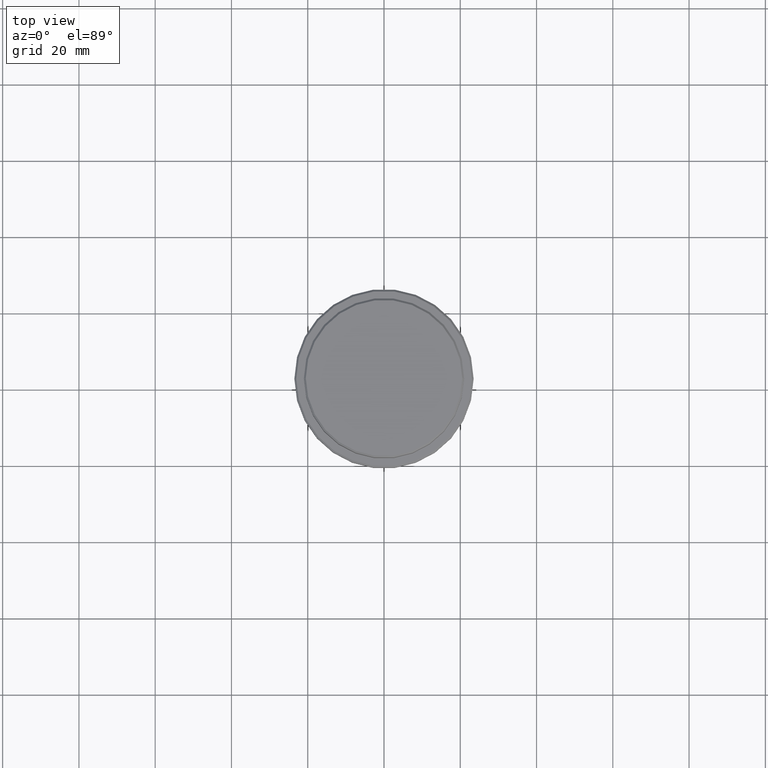
[diagram: clean part render]
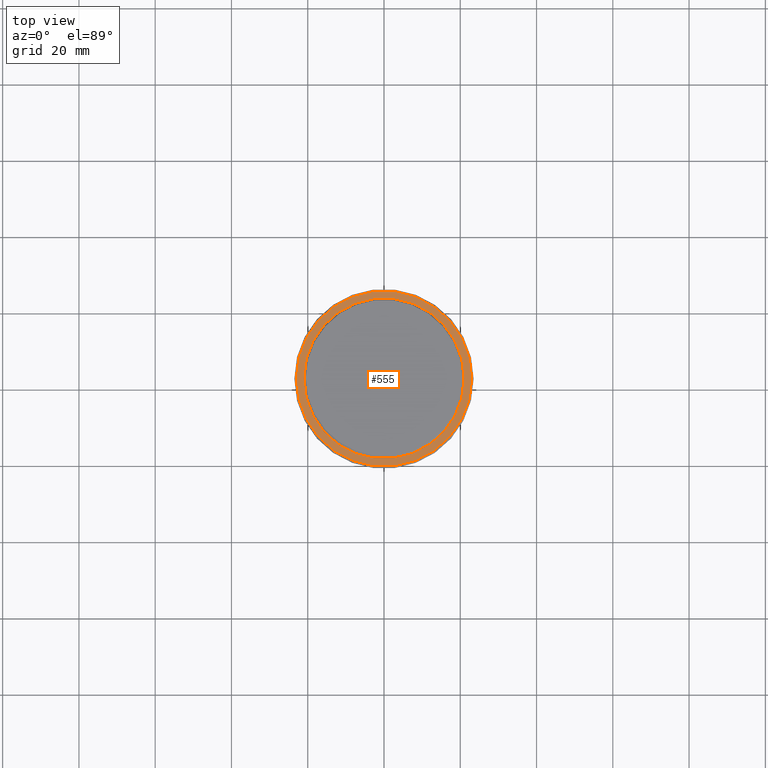
[diagram: same view with one face highlighted and labeled with its STEP entity id]
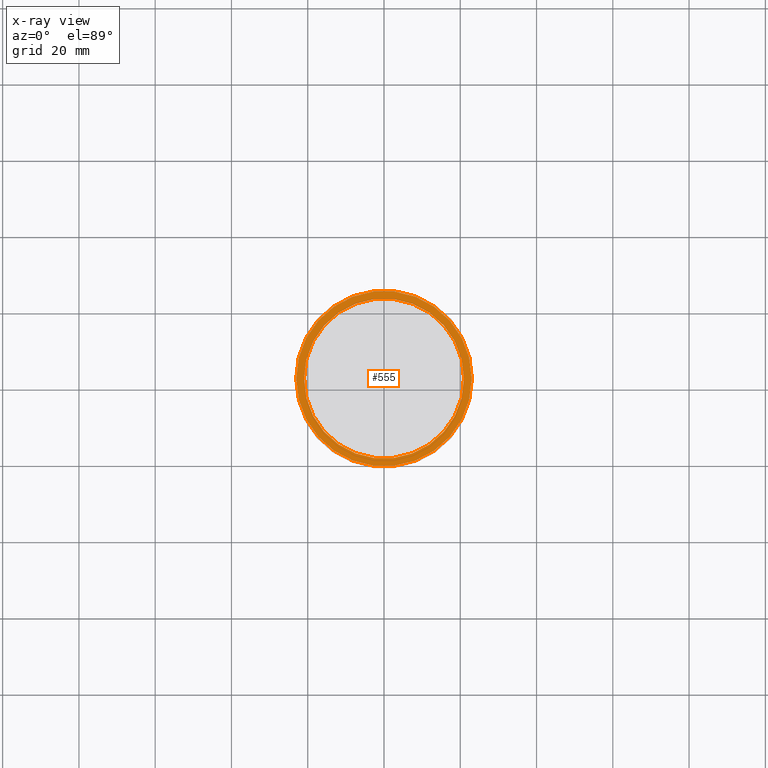
[diagram: x-ray of the same camera — body ghosted, the highlighted face saturated]
A machine part, top view. The second image highlights one B-rep face of the part: STEP entity #555.
The next image is the same camera in x-ray: the body ghosted, the highlighted face saturated — about 0% of this face is hidden behind the body in this view.
In plain terms, the highlighted planar face has unit normal (0, -0, 1).
Its self-contained STEP definition (entity closure, byte-faithful):
#44 = CARTESIAN_POINT ( 'NONE',  ( 20.99999999999999289, 0.000000000000000000, -9.000000000000000000 ) ) ;
#53 = CIRCLE ( 'NONE', #861, 23.00000000000005329 ) ;
#88 = EDGE_LOOP ( 'NONE', ( #1261, #460 ) ) ;
#123 = EDGE_CURVE ( 'NONE', #377, #1087, #53, .T. ) ;
#169 = CARTESIAN_POINT ( 'NONE',  ( 0.000000000000000000, 0.000000000000000000, -9.000000000000000000 ) ) ;
#255 = EDGE_CURVE ( 'NONE', #1087, #377, #1300, .T. ) ;
#269 = CARTESIAN_POINT ( 'NONE',  ( 0.000000000000000000, 0.000000000000000000, -9.000000000000000000 ) ) ;
#272 = ORIENTED_EDGE ( 'NONE', *, *, #346, .T. ) ;
#280 = VERTEX_POINT ( 'NONE', #1267 ) ;
#346 = EDGE_CURVE ( 'NONE', #280, #1200, #557, .T. ) ;
#377 = VERTEX_POINT ( 'NONE', #667 ) ;
#380 = ORIENTED_EDGE ( 'NONE', *, *, #530, .T. ) ;
#387 = DIRECTION ( 'NONE',  ( 0.000000000000000000, 0.000000000000000000, -1.000000000000000000 ) ) ;
#416 = DIRECTION ( 'NONE',  ( 1.000000000000000000, 0.000000000000000000, 0.000000000000000000 ) ) ;
#422 = CARTESIAN_POINT ( 'NONE',  ( 23.00000000000005329, 2.847303808017599689E-15, -9.000000000000000000 ) ) ;
#460 = ORIENTED_EDGE ( 'NONE', *, *, #255, .T. ) ;
#500 = CARTESIAN_POINT ( 'NONE',  ( 0.000000000000000000, 0.000000000000000000, -9.000000000000000000 ) ) ;
#508 = DIRECTION ( 'NONE',  ( 1.000000000000000000, 0.000000000000000000, 0.000000000000000000 ) ) ;
#519 = AXIS2_PLACEMENT_3D ( 'NONE', #269, #387, #1138 ) ;
#530 = EDGE_CURVE ( 'NONE', #1200, #280, #993, .T. ) ;
#555 = ADVANCED_FACE ( 'NONE', ( #768, #577 ), #1315, .T. ) ;
#557 = CIRCLE ( 'NONE', #736, 20.99999999999999289 ) ;
#577 = FACE_BOUND ( 'NONE', #692, .T. ) ;
#630 = DIRECTION ( 'NONE',  ( -0.000000000000000000, -0.000000000000000000, 1.000000000000000000 ) ) ;
#664 = DIRECTION ( 'NONE',  ( 1.000000000000000000, 0.000000000000000000, 0.000000000000000000 ) ) ;
#667 = CARTESIAN_POINT ( 'NONE',  ( -23.00000000000005329, 0.000000000000000000, -9.000000000000000000 ) ) ;
#678 = DIRECTION ( 'NONE',  ( 1.000000000000000000, 0.000000000000000000, 0.000000000000000000 ) ) ;
#692 = EDGE_LOOP ( 'NONE', ( #380, #272 ) ) ;
#736 = AXIS2_PLACEMENT_3D ( 'NONE', #169, #1039, #508 ) ;
#768 = FACE_OUTER_BOUND ( 'NONE', #88, .T. ) ;
#810 = DIRECTION ( 'NONE',  ( -0.000000000000000000, -0.000000000000000000, 1.000000000000000000 ) ) ;
#836 = AXIS2_PLACEMENT_3D ( 'NONE', #500, #630, #416 ) ;
#861 = AXIS2_PLACEMENT_3D ( 'NONE', #1024, #810, #678 ) ;
#886 = DIRECTION ( 'NONE',  ( 0.000000000000000000, -0.000000000000000000, 1.000000000000000000 ) ) ;
#993 = CIRCLE ( 'NONE', #519, 20.99999999999999289 ) ;
#1024 = CARTESIAN_POINT ( 'NONE',  ( 0.000000000000000000, 0.000000000000000000, -9.000000000000000000 ) ) ;
#1039 = DIRECTION ( 'NONE',  ( 0.000000000000000000, 0.000000000000000000, -1.000000000000000000 ) ) ;
#1087 = VERTEX_POINT ( 'NONE', #422 ) ;
#1092 = CARTESIAN_POINT ( 'NONE',  ( 0.000000000000000000, 20.49999999999999645, -9.000000000000000000 ) ) ;
#1138 = DIRECTION ( 'NONE',  ( 1.000000000000000000, 0.000000000000000000, 0.000000000000000000 ) ) ;
#1148 = AXIS2_PLACEMENT_3D ( 'NONE', #1092, #886, #664 ) ;
#1200 = VERTEX_POINT ( 'NONE', #44 ) ;
#1261 = ORIENTED_EDGE ( 'NONE', *, *, #123, .T. ) ;
#1267 = CARTESIAN_POINT ( 'NONE',  ( -20.99999999999999289, 2.571758278209440872E-15, -9.000000000000000000 ) ) ;
#1300 = CIRCLE ( 'NONE', #836, 23.00000000000005329 ) ;
#1315 = PLANE ( 'NONE',  #1148 ) ;